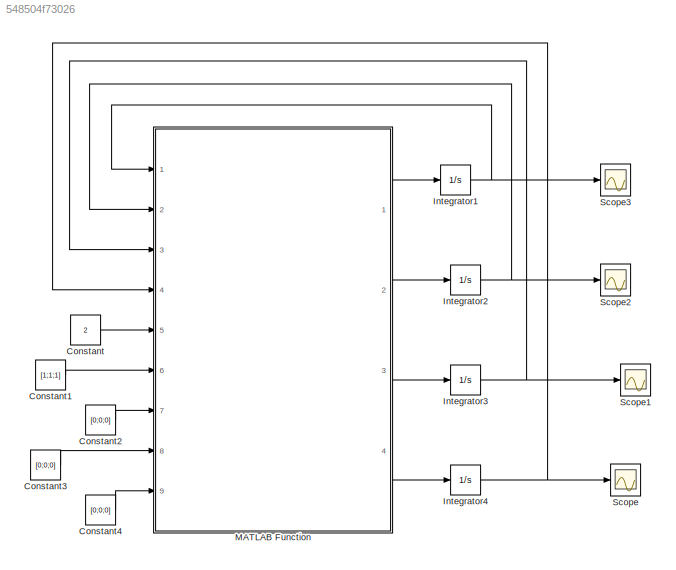
MODEL slx_548504f73026
KIND model
CONFIG AbsTol = auto
CONFIG EnableMultiTasking = off
CONFIG FixedStep = 0.001
CONFIG MaxStep = 0.2
CONFIG MinStep = auto
CONFIG RelTol = 1e-3
CONFIG SampleTimeConstraint = Unconstrained
CONFIG SolverName = ode4
CONFIG StartTime = 0.0
CONFIG StopTime = 10
BLOCK [Constant] Constant
  Value = 2
BLOCK [Constant] Constant1
  Value = [1;1;1]
  VectorParams1D = off
BLOCK [Constant] Constant2
  Value = [0;0;0]
  VectorParams1D = off
BLOCK [Constant] Constant3
  Value = [0;0;0]
  VectorParams1D = off
BLOCK [Constant] Constant4
  Value = [0;0;0]
  VectorParams1D = off
BLOCK [Integrator] Integrator1
  InitialCondition = [0;0;0]
  Ports = [1, 1]
BLOCK [Integrator] Integrator2
  InitialCondition = [0;0;0]
  Ports = [1, 1]
BLOCK [Integrator] Integrator3
  InitialCondition = [0;0;0;0]
  Ports = [1, 1]
BLOCK [Integrator] Integrator4
  InitialCondition = [0;0;0]
  Ports = [1, 1]
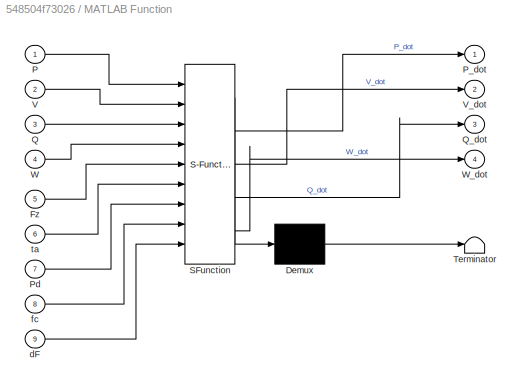
BLOCK [SubSystem] MATLAB Function
  ErrorFcn = Stateflow.Translate.translate
  PermitHierarchicalResolution = ExplicitOnly
  Ports = [9, 4]
  RequestExecContextInheritance = off
  SFBlockType = MATLAB Function
  TreatAsAtomicUnit = on
BLOCK [Demux] MATLAB Function/ Demux 
  Outputs = 1
  Ports = [1, 1]
BLOCK [S-Function] MATLAB Function/ SFunction 
  EnableBusSupport = on
  FunctionName = sf_sfun
  PortCounts = [9 5]
  Ports = [9, 5]
  SFcnIsStateOwnerBlock = off
  SFunctionDeploymentMode = off
  Tag = Stateflow S-Function 2
BLOCK [Terminator] MATLAB Function/ Terminator 
BLOCK [Inport] MATLAB Function/Fz
  Port = 5
BLOCK [Inport] MATLAB Function/P
BLOCK [Outport] MATLAB Function/P_dot
BLOCK [Inport] MATLAB Function/Pd
  Port = 7
BLOCK [Inport] MATLAB Function/Q
  Port = 3
BLOCK [Outport] MATLAB Function/Q_dot
  Port = 3
BLOCK [Inport] MATLAB Function/V
  Port = 2
BLOCK [Outport] MATLAB Function/V_dot
  Port = 2
BLOCK [Inport] MATLAB Function/W
  Port = 4
BLOCK [Outport] MATLAB Function/W_dot
  Port = 4
BLOCK [Inport] MATLAB Function/dF
  Port = 9
BLOCK [Inport] MATLAB Function/fc
  Port = 8
BLOCK [Inport] MATLAB Function/ta
  Port = 6
BLOCK [Scope] Scope
  Floating = off
  NumInputPorts = 1
  Ports = [1]
  ScopeSpecificationString = Simulink.scopes.TimeScopeBlockCfg('CurrentConfiguration', extmgr.ConfigurationSet(extmgr.Configuration('Core','General UI',true),extmgr.Configuration('Core','Source UI',true),extmgr.Configuration('Sources','WiredSimulink',true),extmgr.Configuration('Visuals','Time Domain',true,'SerializedDisplays',{struct('MinYLimReal','-1.25','MaxYLimReal','11.25','YLabelReal','','MinYLimMag','0.00000','MaxYLimMa...<+1351ch>
BLOCK [Scope] Scope1
  Floating = off
  NumInputPorts = 1
  Ports = [1]
  ScopeSpecificationString = Simulink.scopes.TimeScopeBlockCfg('CurrentConfiguration', extmgr.ConfigurationSet(extmgr.Configuration('Core','General UI',true),extmgr.Configuration('Core','Source UI',true),extmgr.Configuration('Sources','WiredSimulink',true,'DataLoggingVariableName','ScopeData1'),extmgr.Configuration('Visuals','Time Domain',true,'SerializedDisplays',{struct('MinYLimReal','-1.00000','MaxYLimReal','1.00000','YLab...<+1420ch>
BLOCK [Scope] Scope2
  Floating = off
  NumInputPorts = 1
  Ports = [1]
  ScopeSpecificationString = Simulink.scopes.TimeScopeBlockCfg('CurrentConfiguration', extmgr.ConfigurationSet(extmgr.Configuration('Core','General UI',true),extmgr.Configuration('Core','Source UI',true),extmgr.Configuration('Sources','WiredSimulink',true,'DataLoggingVariableName','ScopeData2'),extmgr.Configuration('Visuals','Time Domain',true,'SerializedDisplays',{struct('MinYLimReal','-10.39268','MaxYLimReal','10.36888','YL...<+1439ch>
BLOCK [Scope] Scope3
  Floating = off
  NumInputPorts = 1
  Ports = [1]
  ScopeSpecificationString = Simulink.scopes.TimeScopeBlockCfg('CurrentConfiguration', extmgr.ConfigurationSet(extmgr.Configuration('Core','General UI',true),extmgr.Configuration('Core','Source UI',true),extmgr.Configuration('Sources','WiredSimulink',true,'DataLoggingVariableName','ScopeData3'),extmgr.Configuration('Visuals','Time Domain',true,'SerializedDisplays',{struct('MinYLimReal','-0.33055','MaxYLimReal','1.28782','YLab...<+1432ch>
LINE Constant1:1 -> MATLAB Function:6
LINE Constant2:1 -> MATLAB Function:7
LINE Constant3:1 -> MATLAB Function:8
LINE Constant4:1 -> MATLAB Function:9
LINE Constant:1 -> MATLAB Function:5
NET Integrator1:1 -> MATLAB Function:1, Scope3:1
NET Integrator2:1 -> MATLAB Function:2, Scope2:1
NET Integrator3:1 -> MATLAB Function:3, Scope1:1
NET Integrator4:1 -> MATLAB Function:4, Scope:1
LINE MATLAB Function:1 -> Integrator1:1
LINE MATLAB Function:2 -> Integrator2:1
LINE MATLAB Function:3 -> Integrator3:1
LINE MATLAB Function:4 -> Integrator4:1
note: NET lines group one-source signal fan-out (src -> all destinations, sorted); 1:1 wires keep LINE
CHART MATLAB Function states=1 transitions=1
  STATE_LABEL 'eML_blk_kernel()'
  STATE_LABEL 'SCRIPT:\nfunction [P_dot,V_dot,Q_dot,W_dot]= fcn(P,V,Q,W,Fz,ta,Pd,fc,dF)\nclc\nm=5;\nRz=[cos(Q(4)) sin(Q(4)) 0;-sin(Q(4)) cos(Q(4)) 0;0 0 1];\nRx=[1 0 0;0 cos(Q(2)) sin(Q(2));0 -sin(Q(2)) cos(Q(2))];\nRy=[cos(Q(3)) 0 sin(Q(3));0 1 0;-sin(Q(3)) 0 cos(Q(3))];\nRs=Rz*Rx*Ry;\n%lambda=L;\nL=1;\n%L=0;\nRd=[1 0 0;0 1 0;0 0 1-L];\nSL=Rs*Rd*transpose(Rs);\n%V=[Vx;Vy;Vz];\nRb=Rz;\nfa=[0;0;Fz];\n\ng=9.8;\nab=(m^-1)*((Rb*fa)+(...<+375ch>'
CHART  states=0 transitions=0
